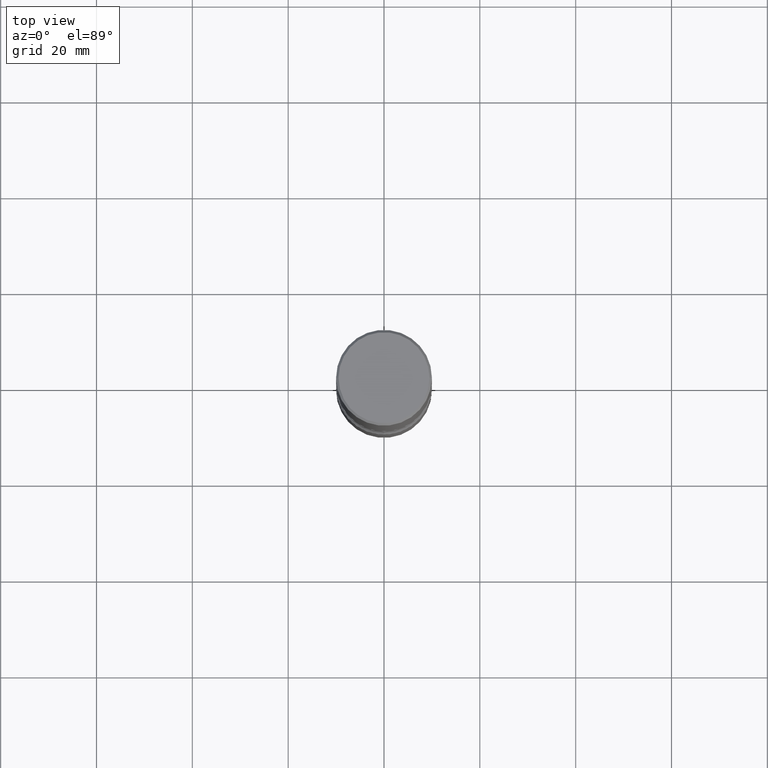
[diagram: clean part render]
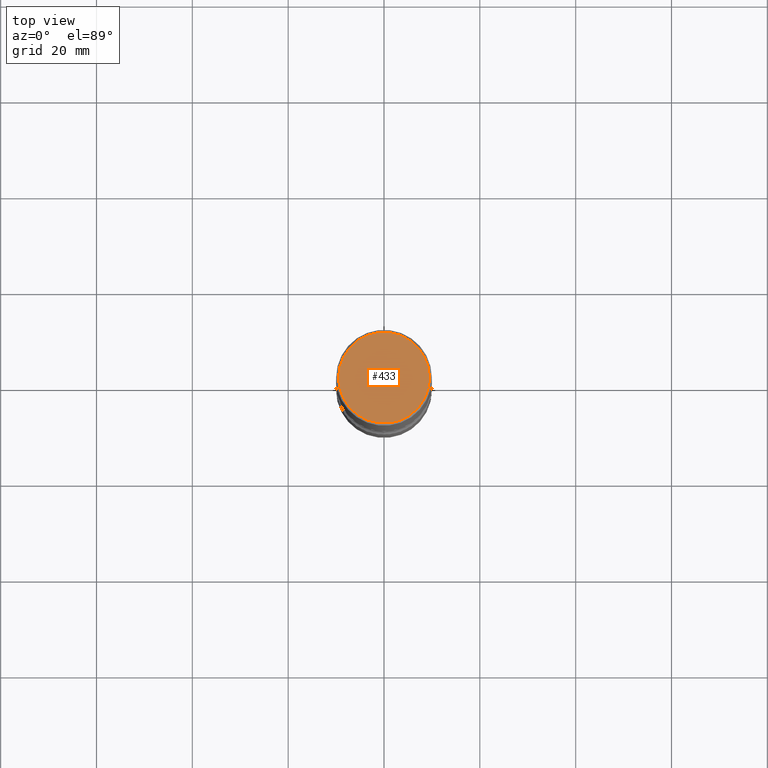
[diagram: same view with one face highlighted and labeled with its STEP entity id]
A machine part, top view. The second image highlights one B-rep face of the part: STEP entity #433.
In plain terms, the highlighted planar face has unit normal (0, -0, -1).
Its self-contained STEP definition (entity closure, byte-faithful):
#1 = CARTESIAN_POINT ( 'NONE',  ( 0.3736999999999999211, -2.667287895133367964E-15, 8.537024980219274507E-18 ) ) ;
#11 = AXIS2_PLACEMENT_3D ( 'NONE', #486, #65, #156 ) ;
#65 = DIRECTION ( 'NONE',  ( 2.438088387897960049E-29, -3.491481338843145188E-15, -1.000000000000000000 ) ) ;
#79 = CARTESIAN_POINT ( 'NONE',  ( -2.087702828670439639E-46, 2.980686340760894400E-32, 8.537024980200822558E-18 ) ) ;
#81 = DIRECTION ( 'NONE',  ( -2.445468806185136597E-29, 3.491481338843145583E-15, 1.000000000000000000 ) ) ;
#98 = EDGE_CURVE ( 'NONE', #319, #246, #179, .T. ) ;
#114 = CARTESIAN_POINT ( 'NONE',  ( -2.087702828670439639E-46, 2.980686340760894400E-32, 8.537024980200822558E-18 ) ) ;
#128 = CARTESIAN_POINT ( 'NONE',  ( -0.3736999999999999211, 2.644447966039788269E-15, 8.537024980182450727E-18 ) ) ;
#133 = EDGE_LOOP ( 'NONE', ( #263, #352 ) ) ;
#144 = EDGE_CURVE ( 'NONE', #246, #319, #417, .T. ) ;
#156 = DIRECTION ( 'NONE',  ( -1.000000000000000000, 6.982962677686265922E-15, -4.876176775795935793E-29 ) ) ;
#179 = CIRCLE ( 'NONE', #189, 0.3736999999999999211 ) ;
#189 = AXIS2_PLACEMENT_3D ( 'NONE', #114, #276, #229 ) ;
#229 = DIRECTION ( 'NONE',  ( 1.000000000000000000, -6.982962677686266711E-15, 4.876212485538976239E-29 ) ) ;
#246 = VERTEX_POINT ( 'NONE', #128 ) ;
#263 = ORIENTED_EDGE ( 'NONE', *, *, #144, .T. ) ;
#276 = DIRECTION ( 'NONE',  ( -2.445468806185136597E-29, 3.491481338843145583E-15, 1.000000000000000000 ) ) ;
#303 = FACE_OUTER_BOUND ( 'NONE', #133, .T. ) ;
#319 = VERTEX_POINT ( 'NONE', #1 ) ;
#352 = ORIENTED_EDGE ( 'NONE', *, *, #98, .T. ) ;
#360 = PLANE ( 'NONE',  #11 ) ;
#362 = AXIS2_PLACEMENT_3D ( 'NONE', #79, #81, #410 ) ;
#410 = DIRECTION ( 'NONE',  ( 1.000000000000000000, -6.982962677686266711E-15, 4.876212485538976239E-29 ) ) ;
#417 = CIRCLE ( 'NONE', #362, 0.3736999999999999211 ) ;
#433 = ADVANCED_FACE ( 'NONE', ( #303 ), #360, .F. ) ;
#486 = CARTESIAN_POINT ( 'NONE',  ( 2.609533152651356620E-15, 0.3736999999999999211, -1.300498063835582814E-15 ) ) ;